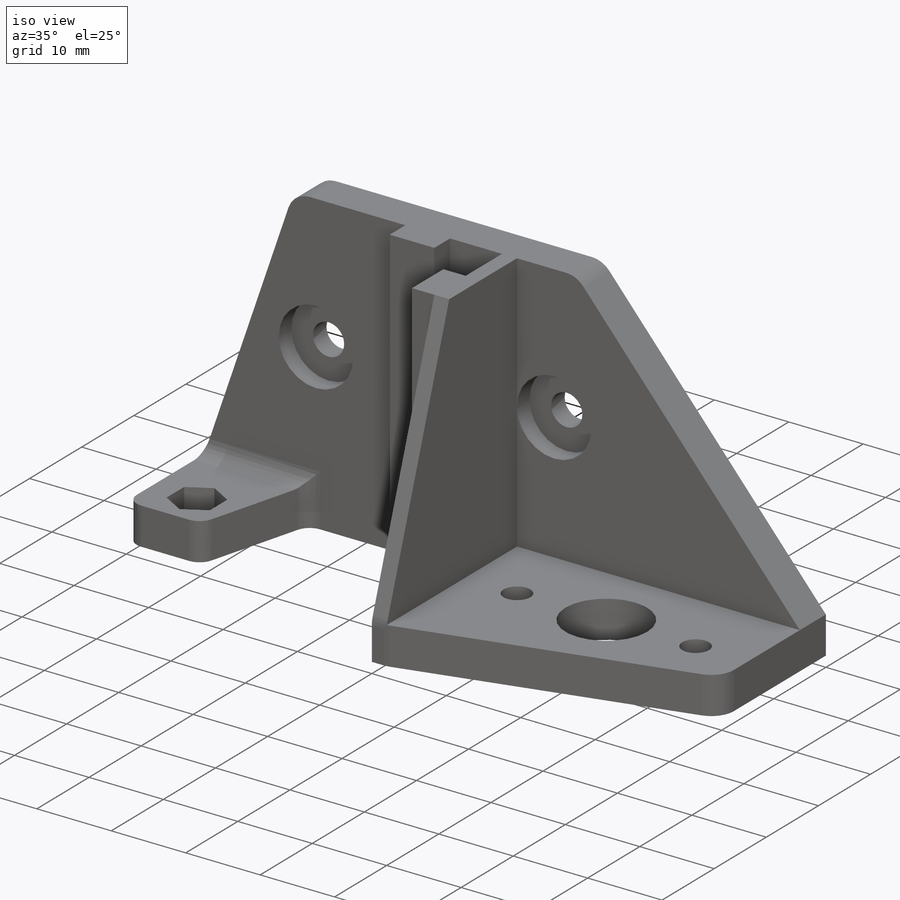
[diagram: iso view]
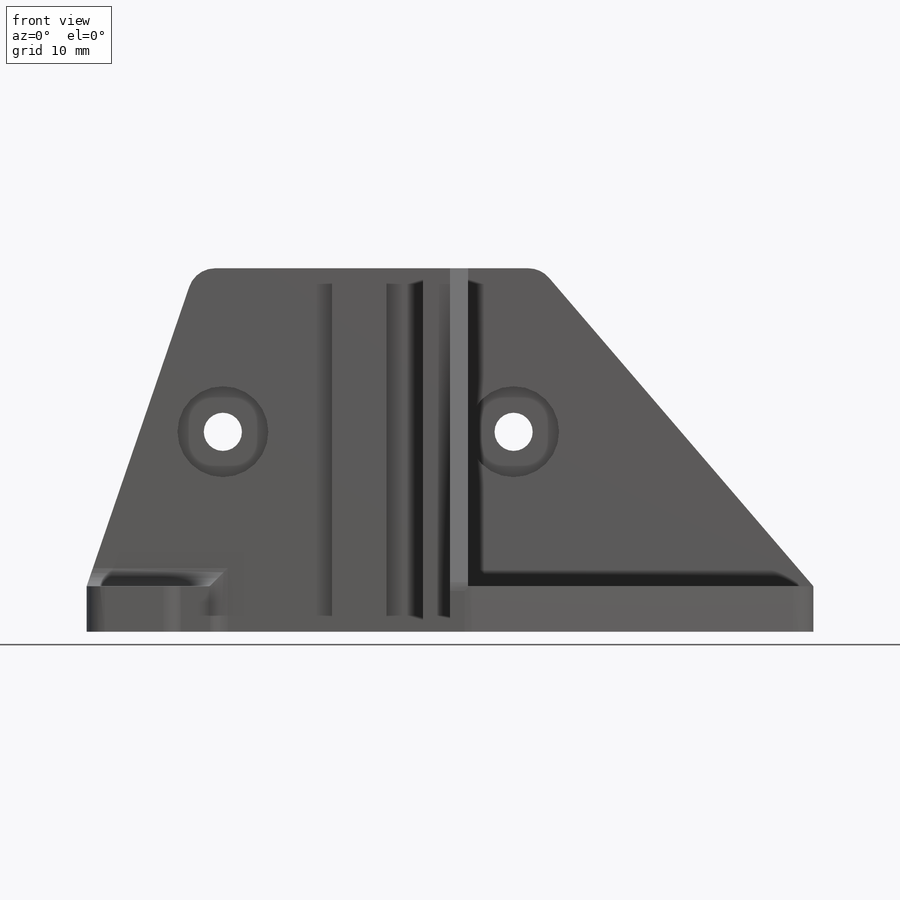
[diagram: front view]
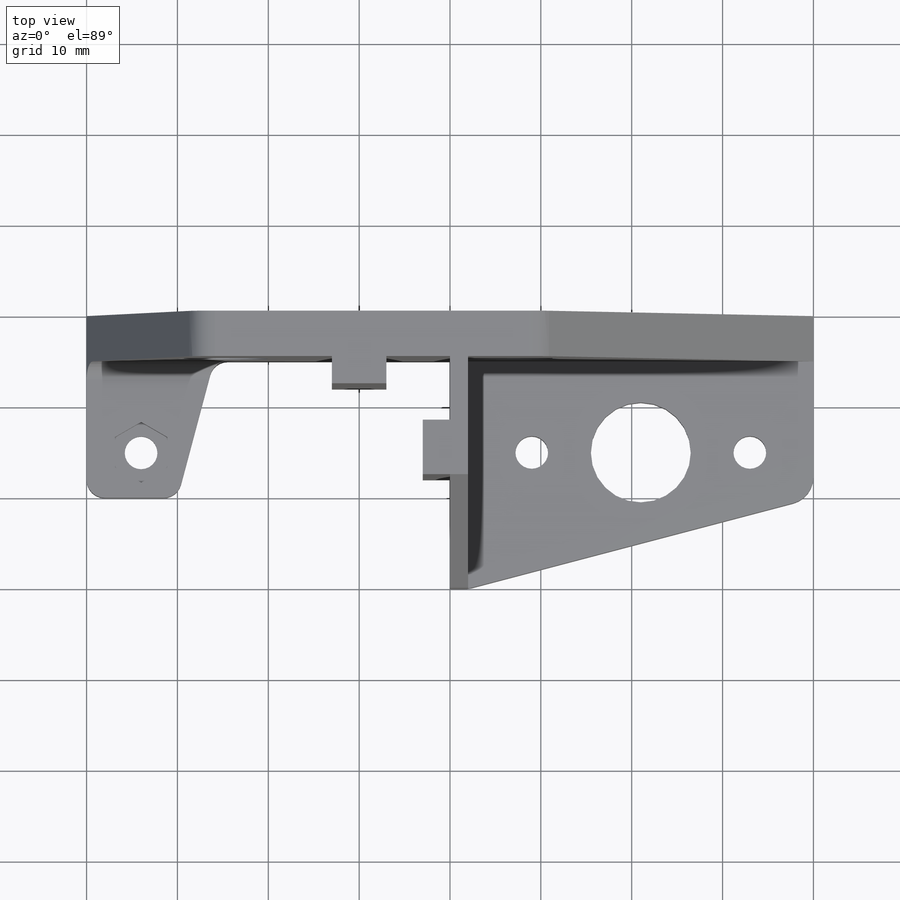
[diagram: top view]
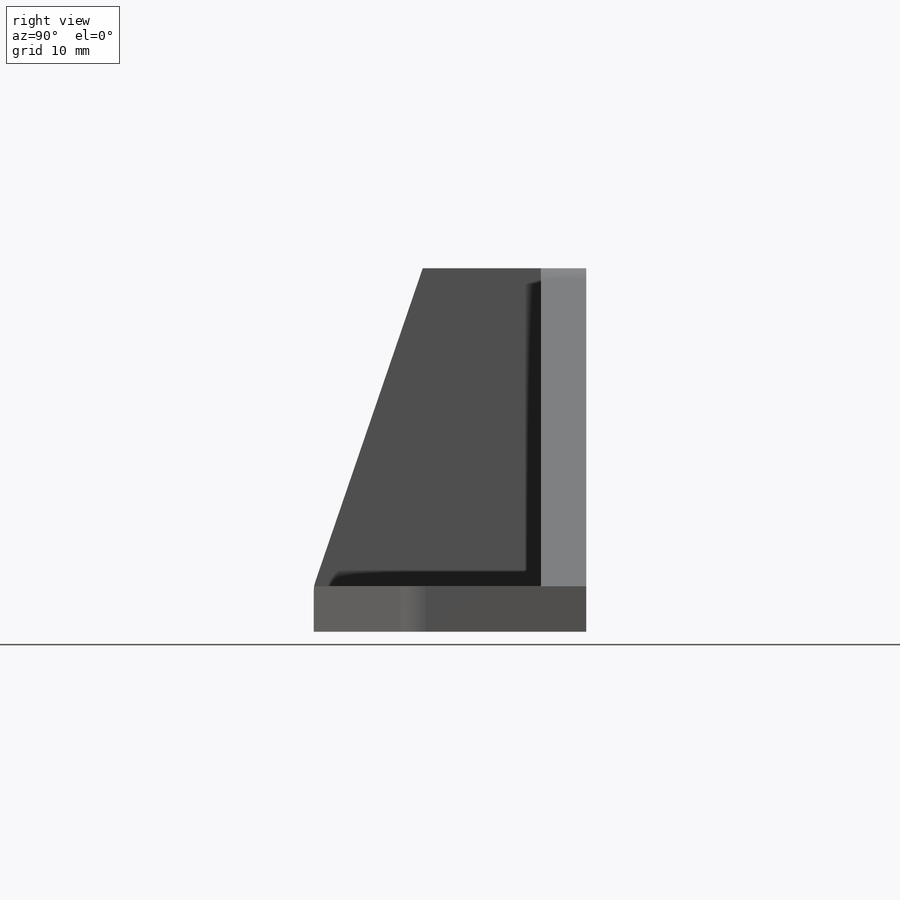
[diagram: right view]
SOLIDWORKS PART (.sldprt)
format: sldprt  version: not decoded by parser v0  size: 385,024 bytes
history: native  units: mm
features: sketch x10, cut_extrude x7, fillet x5, chamfer x4, extrude x3, material x1 (+11 scaffold rows collapsed)
feature tree (41):
  scaffold x11  (default folders/planes/origin — collapsed)
  material  "Material <not specified>"
  sketch  "Sketch1"  dims[D1=80.0mm D2=30.0mm]
  extrude  "Boss-Extrude1"  Depth=5mm
  sketch  "Sketch2"  dims[D1=20.0mm D2=25.0mm D3=40.0mm]
  cut_extrude  "Cut-Extrude1"  [1 undecoded]
  sketch  "Sketch3"  dims[D1=2.0mm]
  extrude  "Boss-Extrude2"  Depth=35mm
  sketch  "Sketch4"  dims[D1=3.6mm D2=3.6mm D3=11.0mm D4=12.0mm D5=12.0mm D6=21.0mm D7=10.0mm D8=10.0mm D9=10.0mm]
  cut_extrude  "Cut-Extrude2"  [1 undecoded]
  chamfer  "Chamfer1"  Distance=38mm
  fillet  "Fillet1"  Radius=3mm
  sketch  "Sketch5"  dims[D1=4.2mm D2=4.2mm D3=18.0mm D4=18.0mm D5=5.0mm D6=25.0mm]
  cut_extrude  "Cut-Extrude3"  [1 undecoded]
  sketch  "Sketch6"  dims[D1=10.0mm D2=10.0mm]
  cut_extrude  "Cut-Extrude4"  Depth=2.4mm
  chamfer  "Chamfer2"  Distance=35mm
  fillet  "Fillet2"  Radius=3mm
  sketch  "Sketch7"  dims[D1=3.0mm D2=3.0mm D3=6.0mm D4=6.0mm D5=7.0mm D6=7.0mm]
  extrude  "Boss-Extrude3"  [1 undecoded]
  chamfer  "Chamfer3"  Distance=35mm
  fillet  "Fillet3"  Radius=3mm
  chamfer  "Chamfer4"  Distance=35mm
  fillet  "Fillet4"  Radius=3mm
  sketch  "Sketch8"  dims[D1=3.6mm D2=34.0mm D3=10.0mm]
  cut_extrude  "Cut-Extrude5"  [1 undecoded]
  sketch  "Sketch9"  dims[D1=10.0mm D2=6.0mm D3=10.0mm]
  cut_extrude  "Cut-Extrude6"  [1 undecoded]
  fillet  "Fillet5"  Radius=2mm
  sketch  "Sketch10"  dims[D1=~3.689619mm]
  cut_extrude  "Cut-Extrude7"  Depth=3mm
decode coverage: 23 of 29 modeling features carry decoded parameters
note: ~ marks probable driven/reference dimensions
note: 6 parameter values undecoded
summary: no parameter record found for 6 features
note: suppression state not decoded; provenance and decode notes live in map.json
